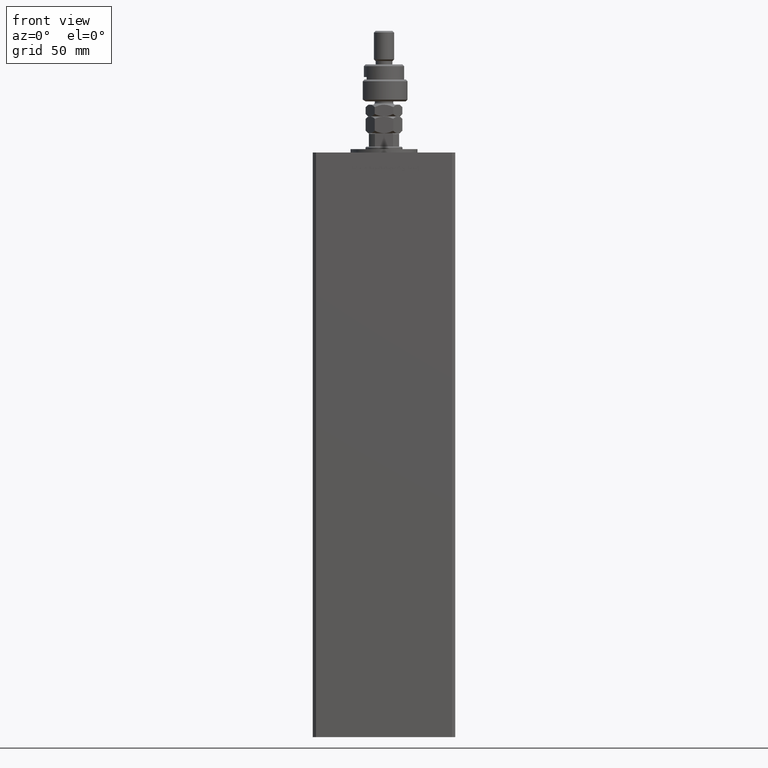
[diagram: clean part render]
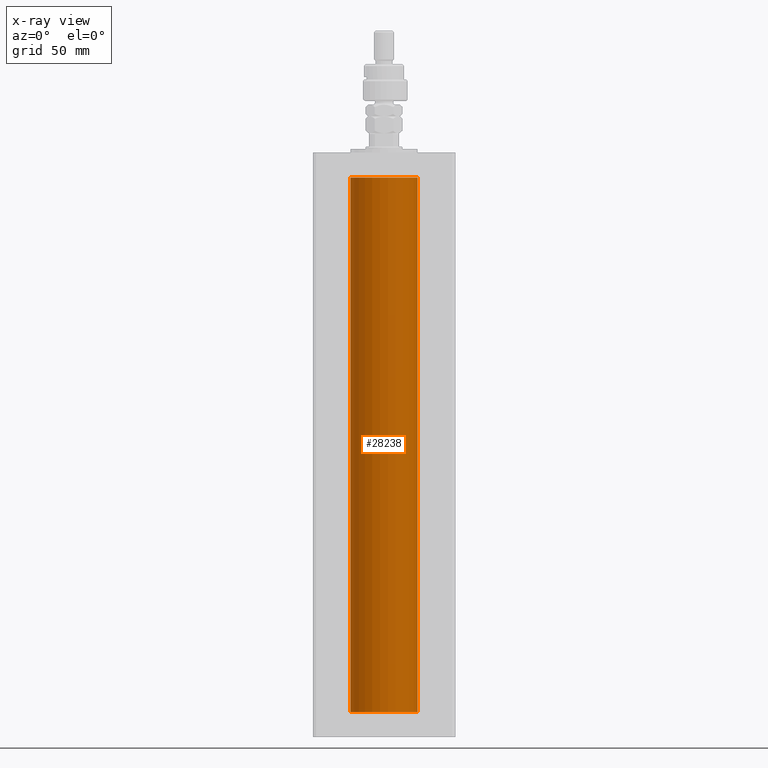
[diagram: x-ray — body ghosted, one internal face saturated and labeled with its STEP entity id]
A machine part, front view, then the same camera in x-ray: the body is ghosted and one INTERNAL B-rep face — a face not visible from any outside direction — is saturated and labeled: STEP entity #28238.
In plain terms, the highlighted cylindrical surface (edge-blend (fillet) strip) has radius 20 mm, axis along (-0, -0, -1).
Its self-contained STEP definition (entity closure, byte-faithful):
#41 = CYLINDRICAL_SURFACE ( 'NONE', #23261, 20.00000000000000000 ) ;
#3018 = CARTESIAN_POINT ( 'NONE',  ( 0.000000000000000000, 0.000000000000000000, 0.000000000000000000 ) ) ;
#7563 = AXIS2_PLACEMENT_3D ( 'NONE', #41979, #20833, #37803 ) ;
#7796 = ORIENTED_EDGE ( 'NONE', *, *, #34255, .T. ) ;
#8245 = CARTESIAN_POINT ( 'NONE',  ( -20.00000000000000000, 0.000000000000000000, 318.5000000000000000 ) ) ;
#9175 = LINE ( 'NONE', #21677, #35181 ) ;
#11897 = EDGE_CURVE ( 'NONE', #48971, #54316, #51713, .T. ) ;
#12616 = ORIENTED_EDGE ( 'NONE', *, *, #54785, .T. ) ;
#13453 = CARTESIAN_POINT ( 'NONE',  ( 20.00000000000000000, 2.449293598294706513E-15, 0.000000000000000000 ) ) ;
#14499 = CARTESIAN_POINT ( 'NONE',  ( -20.00000000000000000, 0.000000000000000000, 318.5000000000000000 ) ) ;
#14945 = DIRECTION ( 'NONE',  ( -0.000000000000000000, 0.000000000000000000, 1.000000000000000000 ) ) ;
#17012 = VERTEX_POINT ( 'NONE', #14499 ) ;
#17769 = DIRECTION ( 'NONE',  ( -0.000000000000000000, -0.000000000000000000, -1.000000000000000000 ) ) ;
#18528 = EDGE_CURVE ( 'NONE', #17012, #48971, #33793, .T. ) ;
#19502 = ORIENTED_EDGE ( 'NONE', *, *, #18528, .F. ) ;
#20833 = DIRECTION ( 'NONE',  ( -0.000000000000000000, 0.000000000000000000, 1.000000000000000000 ) ) ;
#20885 = CIRCLE ( 'NONE', #7563, 20.00000000000000000 ) ;
#21677 = CARTESIAN_POINT ( 'NONE',  ( 20.00000000000000000, 2.449293598294706513E-15, 318.5000000000000000 ) ) ;
#23261 = AXIS2_PLACEMENT_3D ( 'NONE', #47568, #38939, #26418 ) ;
#23853 = DIRECTION ( 'NONE',  ( 1.000000000000000000, 0.000000000000000000, 0.000000000000000000 ) ) ;
#25770 = VECTOR ( 'NONE', #54402, 1000.000000000000000 ) ;
#26169 = VERTEX_POINT ( 'NONE', #46163 ) ;
#26418 = DIRECTION ( 'NONE',  ( -1.000000000000000000, 0.000000000000000000, 0.000000000000000000 ) ) ;
#27712 = AXIS2_PLACEMENT_3D ( 'NONE', #3018, #14945, #23853 ) ;
#28238 = ADVANCED_FACE ( 'NONE', ( #51190 ), #41, .F. ) ;
#33793 = LINE ( 'NONE', #8245, #25770 ) ;
#34255 = EDGE_CURVE ( 'NONE', #17012, #26169, #20885, .T. ) ;
#35181 = VECTOR ( 'NONE', #17769, 1000.000000000000000 ) ;
#37803 = DIRECTION ( 'NONE',  ( 1.000000000000000000, 0.000000000000000000, 0.000000000000000000 ) ) ;
#38939 = DIRECTION ( 'NONE',  ( -0.000000000000000000, -0.000000000000000000, -1.000000000000000000 ) ) ;
#39170 = EDGE_LOOP ( 'NONE', ( #7796, #12616, #46256, #19502 ) ) ;
#41979 = CARTESIAN_POINT ( 'NONE',  ( 0.000000000000000000, 0.000000000000000000, 318.5000000000000000 ) ) ;
#46163 = CARTESIAN_POINT ( 'NONE',  ( 20.00000000000000000, 2.449293598294706513E-15, 318.5000000000000000 ) ) ;
#46256 = ORIENTED_EDGE ( 'NONE', *, *, #11897, .F. ) ;
#47568 = CARTESIAN_POINT ( 'NONE',  ( 0.000000000000000000, 0.000000000000000000, 318.5000000000000000 ) ) ;
#48971 = VERTEX_POINT ( 'NONE', #52707 ) ;
#51190 = FACE_OUTER_BOUND ( 'NONE', #39170, .T. ) ;
#51713 = CIRCLE ( 'NONE', #27712, 20.00000000000000000 ) ;
#52707 = CARTESIAN_POINT ( 'NONE',  ( -20.00000000000000000, 0.000000000000000000, 0.000000000000000000 ) ) ;
#54316 = VERTEX_POINT ( 'NONE', #13453 ) ;
#54402 = DIRECTION ( 'NONE',  ( -0.000000000000000000, -0.000000000000000000, -1.000000000000000000 ) ) ;
#54785 = EDGE_CURVE ( 'NONE', #26169, #54316, #9175, .T. ) ;